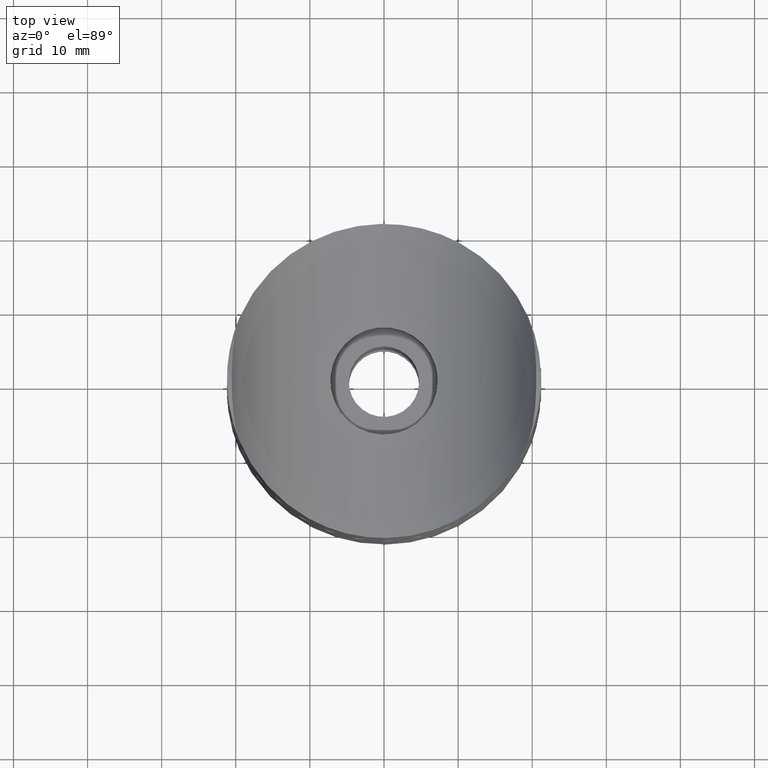
[diagram: clean part render]
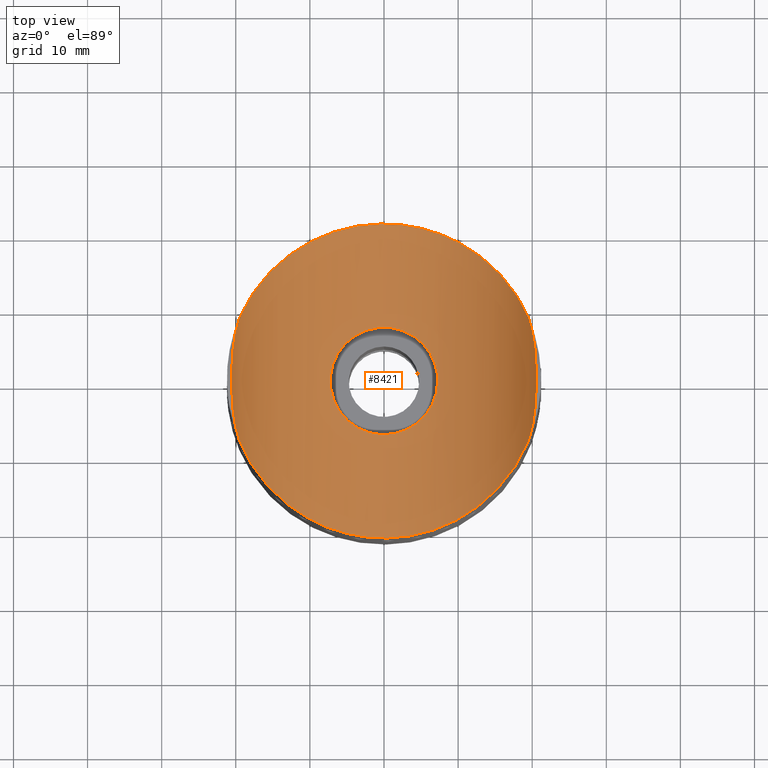
[diagram: same view with one face highlighted and labeled with its STEP entity id]
A machine part, top view. The second image highlights one B-rep face of the part: STEP entity #8421.
In plain terms, the highlighted cylindrical surface (partial cylindrical patch) has radius 21.2 mm, axis along (0, 1, 0).
Its self-contained STEP definition (entity closure, byte-faithful):
#112 = CARTESIAN_POINT ( 'NONE',  ( 6.783481717695231339, -2.569661129754951645, 26.11434282070458224 ) ) ;
#160 = CARTESIAN_POINT ( 'NONE',  ( -1.889748769253165817, -7.015536201140636585, 25.07921617399669856 ) ) ;
#207 = CARTESIAN_POINT ( 'NONE',  ( 7.250000000000000888, 4.336808689942017736E-16, 26.27821544138177146 ) ) ;
#359 = CARTESIAN_POINT ( 'NONE',  ( -7.191716234747704384, 0.9480330731187178728, 26.25708554441513343 ) ) ;
#410 = CARTESIAN_POINT ( 'NONE',  ( -0.4800756467866370003, 7.238085387647868352, 25.00408349533767094 ) ) ;
#458 = CARTESIAN_POINT ( 'NONE',  ( -6.284210845800435763, -3.645984821129527820, 25.95096090228477692 ) ) ;
#485 = CARTESIAN_POINT ( 'NONE',  ( -19.47698192314896559, -8.371808356939878237, 37.82819164306012993 ) ) ;
#508 = CARTESIAN_POINT ( 'NONE',  ( 7.250000000000000000, 0.4829326223636202231, 26.27821544138177146 ) ) ;
#560 = CARTESIAN_POINT ( 'NONE',  ( -4.784453945466627722, 5.452244044724640304, 25.54609599899160699 ) ) ;
#614 = CARTESIAN_POINT ( 'NONE',  ( 20.23529040361044906, -5.225441956113153985, 39.87510411778603725 ) ) ;
#699 = CARTESIAN_POINT ( 'NONE',  ( 19.47698192314896559, -8.371808356939878237, 37.82819164306012993 ) ) ;
#741 = CARTESIAN_POINT ( 'NONE',  ( 20.40473783158546084, -3.795545360191829865, 40.44080144233156915 ) ) ;
#1242 = CARTESIAN_POINT ( 'NONE',  ( -20.06592840846877834, 6.243642590204300014, 39.35590685146058831 ) ) ;
#1270 = CARTESIAN_POINT ( 'NONE',  ( -0.9566369692030692873, -7.202342973613696131, 25.01643312506579875 ) ) ;
#1296 = CARTESIAN_POINT ( 'NONE',  ( -20.13929360642726252, -5.898102119356226858, 39.56486448836644598 ) ) ;
#1407 = CARTESIAN_POINT ( 'NONE',  ( 6.864947048405166896, -2.343528998161403365, 26.14213506629842243 ) ) ;
#1501 = CARTESIAN_POINT ( 'NONE',  ( -2.343731365980564973, -6.877354188263144152, 25.12524757484252547 ) ) ;
#1554 = CARTESIAN_POINT ( 'NONE',  ( -5.760815841621074185, 4.426872302757085542, 25.79588944834129549 ) ) ;
#1603 = CARTESIAN_POINT ( 'NONE',  ( -7.190882583206957612, -0.9543925950206314512, 26.25678463686065101 ) ) ;
#1704 = CARTESIAN_POINT ( 'NONE',  ( -3.640238106544555929, 6.274323524026140575, 25.31380208191953685 ) ) ;
#1731 = CARTESIAN_POINT ( 'NONE',  ( 10.88225247172379184, -28.36741540174245557, 17.83258459825755438 ) ) ;
#1760 = CARTESIAN_POINT ( 'NONE',  ( 19.47698192314896559, 8.371808356939880014, 37.82819164306012993 ) ) ;
#1775 = CARTESIAN_POINT ( 'NONE',  ( -10.88225247172378296, -28.36741540174245557, 17.83258459825755082 ) ) ;
#1843 = CARTESIAN_POINT ( 'NONE',  ( 20.55232557136687532, -0.7708758188737785400, 40.99981599898411133 ) ) ;
#1937 = CARTESIAN_POINT ( 'NONE',  ( 20.12694006280294801, -5.911306179428075680, 39.53835085375742864 ) ) ;
#2516 = CARTESIAN_POINT ( 'NONE',  ( 6.286913508811759144, -3.641491956531571095, 25.95179247060378458 ) ) ;
#2563 = CARTESIAN_POINT ( 'NONE',  ( -10.88225247172379184, 28.36741540174245557, 17.83258459825755438 ) ) ;
#2658 = CARTESIAN_POINT ( 'NONE',  ( -7.261670843123232189, -0.002871798025565951758, 26.28247452916107108 ) ) ;
#2707 = CARTESIAN_POINT ( 'NONE',  ( -7.015049260418604327, 1.892516147631740031, 26.19402445453779293 ) ) ;
#2747 = CARTESIAN_POINT ( 'NONE',  ( 6.509851379537833438, 3.226429652034603635, 26.02330857311110535 ) ) ;
#2800 = CARTESIAN_POINT ( 'NONE',  ( -7.013546906630639732, -1.897859625115785320, 26.19349642912580478 ) ) ;
#2902 = CARTESIAN_POINT ( 'NONE',  ( 20.13929360642726962, 5.898102119356226858, 39.56486448836644598 ) ) ;
#2986 = CARTESIAN_POINT ( 'NONE',  ( 20.24383129417522298, 5.215138519920045290, 39.89861249917789365 ) ) ;
#3079 = CARTESIAN_POINT ( 'NONE',  ( 20.53528304820682848, 1.527824566154137198, 40.93094414034268169 ) ) ;
#3350 = EDGE_CURVE ( 'NONE', #3521, #4806, #14414, .T. ) ;
#3381 = CARTESIAN_POINT ( 'NONE',  ( -20.40473783158546084, 3.795545360191829865, 40.44080144233156915 ) ) ;
#3521 = VERTEX_POINT ( 'NONE', #6885 ) ;
#3641 = CARTESIAN_POINT ( 'NONE',  ( -19.86088413574622535, -7.204073163656734557, 38.77292442679576823 ) ) ;
#3664 = CARTESIAN_POINT ( 'NONE',  ( 5.892557090182336310, -4.230376132583586468, 25.83491791462317266 ) ) ;
#3761 = CARTESIAN_POINT ( 'NONE',  ( -0.9587532348326602838, 7.190350821776163137, 25.02033660952204386 ) ) ;
#3766 = CARTESIAN_POINT ( 'NONE',  ( 10.88225247172378296, 28.36741540174245557, 17.83258459825755082 ) ) ;
#3807 = CARTESIAN_POINT ( 'NONE',  ( -6.512538062397737804, 3.220837523552804615, 26.02418295756668698 ) ) ;
#3826 = VERTEX_POINT ( 'NONE', #12783 ) ;
#3862 = CARTESIAN_POINT ( 'NONE',  ( 1.654782290350953478, 7.062676068814879748, 25.06337429442421438 ) ) ;
#3908 = CARTESIAN_POINT ( 'NONE',  ( -6.285011176621773110, 3.644561984070174177, 25.95121334313776629 ) ) ;
#3962 = CARTESIAN_POINT ( 'NONE',  ( -7.155043788601264332, -1.193796978232354755, 26.24385170633055964 ) ) ;
#4006 = ORIENTED_EDGE ( 'NONE', *, *, #8182, .T. ) ;
#4057 = CARTESIAN_POINT ( 'NONE',  ( 20.45652232654231995, 3.044123025795495874, 40.63382256943705784 ) ) ;
#4253 = CARTESIAN_POINT ( 'NONE',  ( 19.68991037502913244, -7.811889480953812637, 38.32356891776281316 ) ) ;
#4501 = CARTESIAN_POINT ( 'NONE',  ( -19.47698192314896559, 8.371808356939880014, 37.82819164306012993 ) ) ;
#4684 = CARTESIAN_POINT ( 'NONE',  ( 2.348359331223845992, -6.863274511579636084, 25.12922162904524370 ) ) ;
#4766 = CARTESIAN_POINT ( 'NONE',  ( -19.68988660031454785, -7.811951999191022900, 38.32351360597516532 ) ) ;
#4789 = CARTESIAN_POINT ( 'NONE',  ( 5.450020823086105359, -4.787026358093296352, 25.71191835642643042 ) ) ;
#4806 = VERTEX_POINT ( 'NONE', #8794 ) ;
#4812 = CARTESIAN_POINT ( 'NONE',  ( -20.36464765226230611, -4.147746304199338319, 40.30583564236254546 ) ) ;
#4936 = CARTESIAN_POINT ( 'NONE',  ( -6.511739008375247550, -3.222246078574277917, 26.02392867496321571 ) ) ;
#4940 = CARTESIAN_POINT ( 'NONE',  ( 19.47698192314896559, 8.371808356939880014, 37.82819164306012993 ) ) ;
#4988 = CARTESIAN_POINT ( 'NONE',  ( -6.876303559639469043, 2.345931738775585362, 26.14524508502755751 ) ) ;
#5040 = CARTESIAN_POINT ( 'NONE',  ( 2.345654572570459173, 6.864208478661655732, 25.12891732731176830 ) ) ;
#5087 = CARTESIAN_POINT ( 'NONE',  ( 7.004554471377877789, 1.885653695091801252, 26.19046125019305293 ) ) ;
#5138 = CARTESIAN_POINT ( 'NONE',  ( 0.4777985065261786124, 7.249997686576094225, 25.00000079114732543 ) ) ;
#5716 = CARTESIAN_POINT ( 'NONE',  ( -20.53453412056199312, 1.550209013814738634, 40.92800930225627809 ) ) ;
#5834 = DIRECTION ( 'NONE',  ( -0.000000000000000000, 1.000000000000000000, -0.000000000000000000 ) ) ;
#5845 = CARTESIAN_POINT ( 'NONE',  ( 1.892431338738990831, -7.002716058644915975, 25.08339051043943968 ) ) ;
#5900 = CARTESIAN_POINT ( 'NONE',  ( 0.9548202249930327623, -7.202739017739377303, 25.01630039204184897 ) ) ;
#6050 = CARTESIAN_POINT ( 'NONE',  ( 3.224516823743702076, -6.510582053894638399, 25.24205241274554368 ) ) ;
#6087 = ORIENTED_EDGE ( 'NONE', *, *, #9471, .F. ) ;
#6101 = CARTESIAN_POINT ( 'NONE',  ( -4.961887728149400267, -5.291291510677460508, 25.58813029866553634 ) ) ;
#6145 = CARTESIAN_POINT ( 'NONE',  ( -3.007011386368376282, 6.601309398131062878, 25.21316529528078831 ) ) ;
#6195 = CARTESIAN_POINT ( 'NONE',  ( 3.636215122921611975, 6.276662310834707270, 25.31309908041850676 ) ) ;
#6239 = CARTESIAN_POINT ( 'NONE',  ( 4.794854175872543145, 5.458268951572305738, 25.54651072145666291 ) ) ;
#6286 = CARTESIAN_POINT ( 'NONE',  ( 3.841002185440882233, 6.153497826531594050, 25.34989155617825674 ) ) ;
#6846 = ORIENTED_EDGE ( 'NONE', *, *, #11679, .T. ) ;
#6885 = CARTESIAN_POINT ( 'NONE',  ( 19.47698192314896559, -8.371808356939878237, 37.82819164306012993 ) ) ;
#6984 = CARTESIAN_POINT ( 'NONE',  ( -19.85912383825223770, 7.209440190958543049, 38.76847417715065802 ) ) ;
#7040 = CARTESIAN_POINT ( 'NONE',  ( -20.55241849752194838, -0.7648325619719219537, 41.00018327836448861 ) ) ;
#7061 = CARTESIAN_POINT ( 'NONE',  ( 1.658086648949340436, -7.061898216450463117, 25.06363438643857933 ) ) ;
#7165 = CARTESIAN_POINT ( 'NONE',  ( 4.794506645124587685, -5.458495940767763344, 25.54644006431659875 ) ) ;
#7264 = CARTESIAN_POINT ( 'NONE',  ( -7.238519723795990402, 0.4726323275835445648, 26.27402570532306569 ) ) ;
#7312 = CARTESIAN_POINT ( 'NONE',  ( 1.889166000319857597, 7.003606587722266852, 25.08309510850801516 ) ) ;
#7363 = CARTESIAN_POINT ( 'NONE',  ( 5.763426133025922660, 4.423481646274624701, 25.79662915280593083 ) ) ;
#7410 = CARTESIAN_POINT ( 'NONE',  ( 7.202198424912304553, 0.9571122672483782789, 26.26063926573250740 ) ) ;
#7456 = CARTESIAN_POINT ( 'NONE',  ( -4.420518731307494065, 5.751258890511367738, 25.46515579548953312 ) ) ;
#7474 = VERTEX_POINT ( 'NONE', #14222 ) ;
#7556 = CARTESIAN_POINT ( 'NONE',  ( 19.85912383825224481, -7.209440190958547490, 38.76847417715065802 ) ) ;
#7596 = CARTESIAN_POINT ( 'NONE',  ( 20.46058540166369255, -3.059655748426151511, 40.64793529514943771 ) ) ;
#7684 = CARTESIAN_POINT ( 'NONE',  ( 20.53453412056199312, -1.550209013814737302, 40.92800930225627098 ) ) ;
#7971 = CARTESIAN_POINT ( 'NONE',  ( -20.23529040361046683, 5.225441956113158426, 39.87510411778607278 ) ) ;
#8157 = CARTESIAN_POINT ( 'NONE',  ( -0.4722111775666738565, -7.250316275388796861, 24.99989183980574836 ) ) ;
#8182 = EDGE_CURVE ( 'NONE', #7474, #10349, #8762, .T. ) ;
#8181 = CARTESIAN_POINT ( 'NONE',  ( -20.39881846223790163, -3.784746499335644998, 40.42593364867575900 ) ) ;
#8307 = CARTESIAN_POINT ( 'NONE',  ( 7.062438076636139428, -1.655554104716792096, 26.21089259011971961 ) ) ;
#8402 = CARTESIAN_POINT ( 'NONE',  ( -1.893306789193654582, 7.014520785390482516, 25.07955394206430455 ) ) ;
#8421 = ADVANCED_FACE ( 'NONE', ( #9716, #14548 ), #9343, .F. ) ;
#8455 = CARTESIAN_POINT ( 'NONE',  ( -2.346359400707022314, 6.876387900135069842, 25.12556071525185075 ) ) ;
#8460 = CARTESIAN_POINT ( 'NONE',  ( -19.47698192314896559, 8.371808356939880014, 37.82819164306012993 ) ) ;
#8504 = CARTESIAN_POINT ( 'NONE',  ( 6.287238633193505954, 3.640728091337462669, 25.95190742098767700 ) ) ;
#8551 = CARTESIAN_POINT ( 'NONE',  ( 7.250000000000000888, 4.336808689942017736E-16, 26.27821544138177146 ) ) ;
#8596 = CARTESIAN_POINT ( 'NONE',  ( -5.461870639133845629, -4.790913465329501797, 25.71278499240158055 ) ) ;
#8648 = CARTESIAN_POINT ( 'NONE',  ( 20.28272701626404384, -4.870488758881911018, 40.02979673881738165 ) ) ;
#8692 =( BOUNDED_CURVE ( )  B_SPLINE_CURVE ( 3, ( #8460, #2563, #3766, #4940 ),
 .UNSPECIFIED., .F., .T. ) 
 B_SPLINE_CURVE_WITH_KNOTS ( ( 4, 4 ),
 ( 5.118344303942862439, 7.448026310416310025 ),
 .UNSPECIFIED. ) 
 CURVE ( )  GEOMETRIC_REPRESENTATION_ITEM ( )  RATIONAL_B_SPLINE_CURVE ( ( 1.000000000000000000, 0.5965977470735812638, 0.5965977470735812638, 1.000000000000000000 ) ) 
 REPRESENTATION_ITEM ( '' )  );
#8740 = CARTESIAN_POINT ( 'NONE',  ( 20.48009319598952516, 2.664877520715785764, 40.72177195033617636 ) ) ;
#8762 = B_SPLINE_CURVE_WITH_KNOTS ( 'NONE', 3,
 ( #4501, #12704, #6984, #1242, #12545, #7971, #10285, #3381, #11431, #5716, #11595, #7040, #10547, #11698, #11647, #8181, #4812, #9378, #1296, #3641, #4766, #9325 ),
 .UNSPECIFIED., .F., .F.,
 ( 4, 2, 2, 2, 2, 2, 2, 2, 2, 2, 4 ),
 ( 3.469446951953617270E-18, 0.002297565324930342292, 0.003446347987395517991, 0.004595130649860693257, 0.006892695974791053330, 0.009190261299721414270, 0.01148782662465177261, 0.01263660928711695178, 0.01378539194958213268, 0.01608295727451249102, 0.01838052259944285283 ),
 .UNSPECIFIED. ) ;
#8784 = CARTESIAN_POINT ( 'NONE',  ( 20.55241849752194483, 0.7648325619719239521, 41.00018327836448861 ) ) ;
#8794 = CARTESIAN_POINT ( 'NONE',  ( 19.47698192314896559, 8.371808356939880014, 37.82819164306012993 ) ) ;
#8825 = CARTESIAN_POINT ( 'NONE',  ( 20.36464765226230966, 4.147746304199341871, 40.30583564236255256 ) ) ;
#9143 = AXIS2_PLACEMENT_3D ( 'NONE', #9235, #5834, #11332 ) ;
#9172 = EDGE_LOOP ( 'NONE', ( #6846 ) ) ;
#9235 = CARTESIAN_POINT ( 'NONE',  ( 0.000000000000000000, -21.19999999999999929, 46.20000000000000284 ) ) ;
#9325 = CARTESIAN_POINT ( 'NONE',  ( -19.47698192314896559, -8.371808356939878237, 37.82819164306012993 ) ) ;
#9343 = CYLINDRICAL_SURFACE ( 'NONE', #9143, 21.19999999999999574 ) ;
#9378 = CARTESIAN_POINT ( 'NONE',  ( -20.24383129417522298, -5.215138519920044402, 39.89861249917791497 ) ) ;
#9455 = CARTESIAN_POINT ( 'NONE',  ( 5.292002883686151016, -4.961068277643231994, 25.67041370422165514 ) ) ;
#9471 = EDGE_CURVE ( 'NONE', #7474, #4806, #8692, .T. ) ;
#9502 = CARTESIAN_POINT ( 'NONE',  ( 6.509725557862076961, -3.226624134545732492, 26.02326916184721739 ) ) ;
#9558 = CARTESIAN_POINT ( 'NONE',  ( -4.419892896670888582, -5.751778146353815124, 25.46501574993814287 ) ) ;
#9604 = CARTESIAN_POINT ( 'NONE',  ( 2.568855173014323423, 6.783761352755690588, 25.15506023593372475 ) ) ;
#9654 = CARTESIAN_POINT ( 'NONE',  ( 3.005515933869999490, 6.601917067209928547, 25.21297113585742622 ) ) ;
#9708 = CARTESIAN_POINT ( 'NONE',  ( -4.785265091308676944, -5.451572531739593330, 25.54627725870567900 ) ) ;
#9716 = FACE_BOUND ( 'NONE', #9172, .T. ) ;
#9754 = CARTESIAN_POINT ( 'NONE',  ( -3.226555368670444235, -6.510024408526108530, 25.24224232055189532 ) ) ;
#10011 = CARTESIAN_POINT ( 'NONE',  ( -19.47698192314896559, -8.371808356939878237, 37.82819164306012993 ) ) ;
#10285 = CARTESIAN_POINT ( 'NONE',  ( -20.28272701626405450, 4.870488758881912794, 40.02979673881739586 ) ) ;
#10349 = VERTEX_POINT ( 'NONE', #10011 ) ;
#10547 = CARTESIAN_POINT ( 'NONE',  ( -20.53528304820682493, -1.527824566154136088, 40.93094414034267459 ) ) ;
#10567 = CARTESIAN_POINT ( 'NONE',  ( 7.202236549575339097, -0.9570018828714323966, 26.26065258830764293 ) ) ;
#10658 = CARTESIAN_POINT ( 'NONE',  ( -0.2388465963188745045, 7.250001156584477968, 24.99999960446994152 ) ) ;
#10671 = EDGE_LOOP ( 'NONE', ( #11494, #12523, #6087, #4006 ) ) ;
#10713 = CARTESIAN_POINT ( 'NONE',  ( -7.156177727786750431, 1.187067269414618709, 26.24425862712032398 ) ) ;
#10755 = CARTESIAN_POINT ( 'NONE',  ( -4.960688375816871165, 5.292462506426915958, 25.58783515313074375 ) ) ;
#10806 = CARTESIAN_POINT ( 'NONE',  ( 6.783783114446718443, 2.568883994451139241, 26.11444431597576710 ) ) ;
#10850 = CARTESIAN_POINT ( 'NONE',  ( -6.874786492142588301, -2.350090507094773962, 26.14472863026726301 ) ) ;
#10994 = EDGE_CURVE ( 'NONE', #3521, #10349, #12276, .T. ) ;
#11141 = CARTESIAN_POINT ( 'NONE',  ( 20.39881846223790163, 3.784746499335643666, 40.42593364867575900 ) ) ;
#11256 = B_SPLINE_CURVE_WITH_KNOTS ( 'NONE', 3,
 ( #207, #11620, #10567, #8307, #11715, #1407, #112, #9502, #2516, #3664, #12874, #4789, #9455, #7165, #11769, #12924, #6050, #14072, #4684, #5845, #7061, #5900, #13884, #8157, #1270, #160, #1501, #9754, #13070, #13171, #9558, #9708, #6101, #8596, #11873, #458, #4936, #10850, #2800, #3962, #1603, #11819, #2658, #7264, #359, #10713, #2707, #4988, #3807, #3908, #1554, #13124, #10755, #560, #7456, #13020, #14120, #1704, #12013, #6145, #8455, #8402, #12974, #3761, #410, #10658, #5138, #14167, #3862, #7312, #5040, #9604, #9654, #11920, #6195, #6286, #14317, #6239, #14218, #7363, #8504, #2747, #10806, #11967, #5087, #14264, #7410, #508, #8551 ),
 .UNSPECIFIED., .T., .F.,
 ( 4, 2, 2, 2, 2, 2, 2, 2, 2, 2, 2, 2, 2, 2, 2, 2, 2, 2, 2, 2, 2, 1, 2, 2, 2, 2, 2, 2, 2, 2, 2, 2, 2, 2, 2, 2, 2, 2, 2, 2, 2, 2, 2, 2, 4 ),
 ( 0.000000000000000000, 0.001427308038129306532, 0.002140962057193959798, 0.002854616076258613064, 0.004281924114387921330, 0.004995578133452572428, 0.005709232152517225260, 0.007136540190646527455, 0.008563848228775828783, 0.009277502247840480748, 0.009991156266905130978, 0.01141846430503443144, 0.01284577234316373710, 0.01427308038129303583, 0.01570038841942233976, 0.01641404243848698999, 0.01712769645755164022, 0.01855500449568094068, 0.01998231253381023767, 0.02140962057193953813, 0.02212327459100418836, 0.02283692861006883512, 0.02355058262913348535, 0.02426423664819812864, 0.02569154468632742910, 0.02711885272445672262, 0.02854616076258602309, 0.02925981478165067332, 0.02997346880071532355, 0.03068712281977997031, 0.03140077683884461707, 0.03282808487697392447, 0.03354173889603856429, 0.03425539291510321799, 0.03568270095323251151, 0.03639635497229715827, 0.03711000899136181197, 0.03782366301042645179, 0.03853731702949110549, 0.03996462506762039901, 0.04139193310574969947, 0.04281924114387899993, 0.04353289516294364669, 0.04424654918200830039, 0.04567385722013758698 ),
 .UNSPECIFIED. ) ;
#11332 = DIRECTION ( 'NONE',  ( 0.000000000000000000, 0.000000000000000000, 1.000000000000000000 ) ) ;
#11431 = CARTESIAN_POINT ( 'NONE',  ( -20.46058540166369255, 3.059655748426153288, 40.64793529514943771 ) ) ;
#11494 = ORIENTED_EDGE ( 'NONE', *, *, #10994, .F. ) ;
#11595 = CARTESIAN_POINT ( 'NONE',  ( -20.55232557136687532, 0.7708758188737804273, 40.99981599898411133 ) ) ;
#11620 = CARTESIAN_POINT ( 'NONE',  ( 7.250000000000000888, -0.4829326223636261628, 26.27821544138177146 ) ) ;
#11647 = CARTESIAN_POINT ( 'NONE',  ( -20.45652232654232350, -3.044123025795496762, 40.63382256943706494 ) ) ;
#11679 = EDGE_CURVE ( 'NONE', #3826, #3826, #11256, .T. ) ;
#11698 = CARTESIAN_POINT ( 'NONE',  ( -20.48009319598952516, -2.664877520715785764, 40.72177195033617636 ) ) ;
#11715 = CARTESIAN_POINT ( 'NONE',  ( 7.004391776076587028, -1.886298489068188644, 26.19040381408828466 ) ) ;
#11769 = CARTESIAN_POINT ( 'NONE',  ( 4.431842194841499882, -5.757450224349423884, 25.46449216879341293 ) ) ;
#11819 = CARTESIAN_POINT ( 'NONE',  ( -7.238136233160389565, -0.4785803622761156673, 26.27388614418867618 ) ) ;
#11873 = CARTESIAN_POINT ( 'NONE',  ( -5.759433065516850192, -4.428706587053825139, 25.79549507831404398 ) ) ;
#11920 = CARTESIAN_POINT ( 'NONE',  ( 3.218975471921121212, 6.500518986633828433, 25.24474081869308151 ) ) ;
#11967 = CARTESIAN_POINT ( 'NONE',  ( 6.865358533641771288, 2.342290632023552366, 26.14227638720989688 ) ) ;
#12013 = CARTESIAN_POINT ( 'NONE',  ( -3.223449022790387364, 6.498295588379971122, 25.24543072876374339 ) ) ;
#12185 = CARTESIAN_POINT ( 'NONE',  ( 19.47698192314896559, -8.371808356939878237, 37.82819164306012993 ) ) ;
#12276 =( BOUNDED_CURVE ( )  B_SPLINE_CURVE ( 3, ( #12185, #1731, #1775, #485 ),
 .UNSPECIFIED., .F., .F. ) 
 B_SPLINE_CURVE_WITH_KNOTS ( ( 4, 4 ),
 ( 5.118344303942862439, 7.448026310416310025 ),
 .UNSPECIFIED. ) 
 CURVE ( )  GEOMETRIC_REPRESENTATION_ITEM ( )  RATIONAL_B_SPLINE_CURVE ( ( 1.000000000000000000, 0.5965977470735812638, 0.5965977470735812638, 1.000000000000000000 ) ) 
 REPRESENTATION_ITEM ( '' )  );
#12523 = ORIENTED_EDGE ( 'NONE', *, *, #3350, .T. ) ;
#12545 = CARTESIAN_POINT ( 'NONE',  ( -20.12694006280294801, 5.911306179428077456, 39.53835085375742864 ) ) ;
#12704 = CARTESIAN_POINT ( 'NONE',  ( -19.68991037502913244, 7.811889480953814413, 38.32356891776282026 ) ) ;
#12783 = CARTESIAN_POINT ( 'NONE',  ( 7.250000000000000000, 0.000000000000000000, 26.27821544138177146 ) ) ;
#12874 = CARTESIAN_POINT ( 'NONE',  ( 5.750198254161105638, -4.421941696019373147, 25.79413230358358078 ) ) ;
#12924 = CARTESIAN_POINT ( 'NONE',  ( 3.640337174190668712, -6.287877510260853064, 25.31099678021441335 ) ) ;
#12974 = CARTESIAN_POINT ( 'NONE',  ( -1.194776294910109504, 7.154817448180724959, 25.03240748984039499 ) ) ;
#13020 = CARTESIAN_POINT ( 'NONE',  ( -4.232005378712566213, 5.891331145596399921, 25.42574635267014216 ) ) ;
#13070 = CARTESIAN_POINT ( 'NONE',  ( -3.644503179383112190, -6.285018690129448693, 25.31181856569206445 ) ) ;
#13124 = CARTESIAN_POINT ( 'NONE',  ( -5.462926514089700980, 4.789915247397692255, 25.71304050749441927 ) ) ;
#13171 = CARTESIAN_POINT ( 'NONE',  ( -4.230815641621740397, -5.892201612857570936, 25.42550046882274373 ) ) ;
#13274 = CARTESIAN_POINT ( 'NONE',  ( 19.86088413574621114, 7.204073163656725676, 38.77292442679576112 ) ) ;
#13412 = CARTESIAN_POINT ( 'NONE',  ( 19.68988660031455140, 7.811951999191025564, 38.32351360597515821 ) ) ;
#13884 = CARTESIAN_POINT ( 'NONE',  ( 0.4818734902393386199, -7.249680505290641896, 25.00010926114104493 ) ) ;
#14072 = CARTESIAN_POINT ( 'NONE',  ( 2.571139155122229347, -6.782876624395626663, 25.15534480208394896 ) ) ;
#14120 = CARTESIAN_POINT ( 'NONE',  ( -3.841864781931650707, 6.152863332618361270, 25.35007052466595923 ) ) ;
#14167 = CARTESIAN_POINT ( 'NONE',  ( 0.9512028090831824434, 7.203228716476409943, 25.01613312446809090 ) ) ;
#14218 = CARTESIAN_POINT ( 'NONE',  ( 5.459349115452878820, 4.793624281395492126, 25.71213156078966122 ) ) ;
#14222 = CARTESIAN_POINT ( 'NONE',  ( -19.47698192314896559, 8.371808356939880014, 37.82819164306012993 ) ) ;
#14264 = CARTESIAN_POINT ( 'NONE',  ( 7.062527813327395876, 1.655145732846094120, 26.21092440739839446 ) ) ;
#14317 = CARTESIAN_POINT ( 'NONE',  ( 4.432367805953222550, 5.756904445230272671, 25.46463419026553154 ) ) ;
#14414 = B_SPLINE_CURVE_WITH_KNOTS ( 'NONE', 3,
 ( #699, #4253, #7556, #14467, #1937, #614, #8648, #741, #7596, #7684, #1843, #8784, #3079, #8740, #4057, #11141, #8825, #2986, #2902, #13274, #13412, #1760 ),
 .UNSPECIFIED., .F., .F.,
 ( 4, 2, 2, 2, 2, 2, 2, 2, 2, 2, 4 ),
 ( 3.469446951953614189E-18, 0.002297565324930347930, 0.003446347987395525364, 0.004595130649860702798, 0.006892695974791061136, 0.009190261299721417740, 0.01148782662465177608, 0.01263660928711695525, 0.01378539194958213442, 0.01608295727451249102, 0.01838052259944284936 ),
 .UNSPECIFIED. ) ;
#14467 = CARTESIAN_POINT ( 'NONE',  ( 20.06592840846877834, -6.243642590204301790, 39.35590685146058121 ) ) ;
#14548 = FACE_OUTER_BOUND ( 'NONE', #10671, .T. ) ;